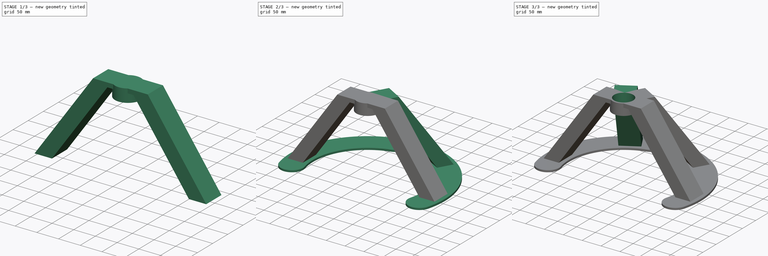
[diagram: build sequence overview — one tinted view per stage of 3, left to right]
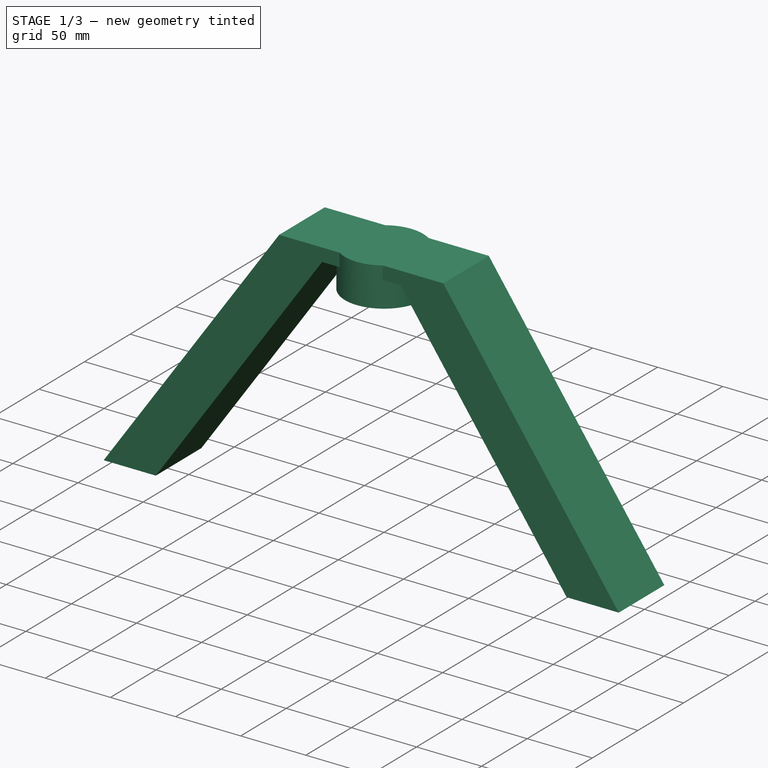
[diagram: stage 1 of 3 — iso view after this stage's code; geometry added in this stage tinted green]
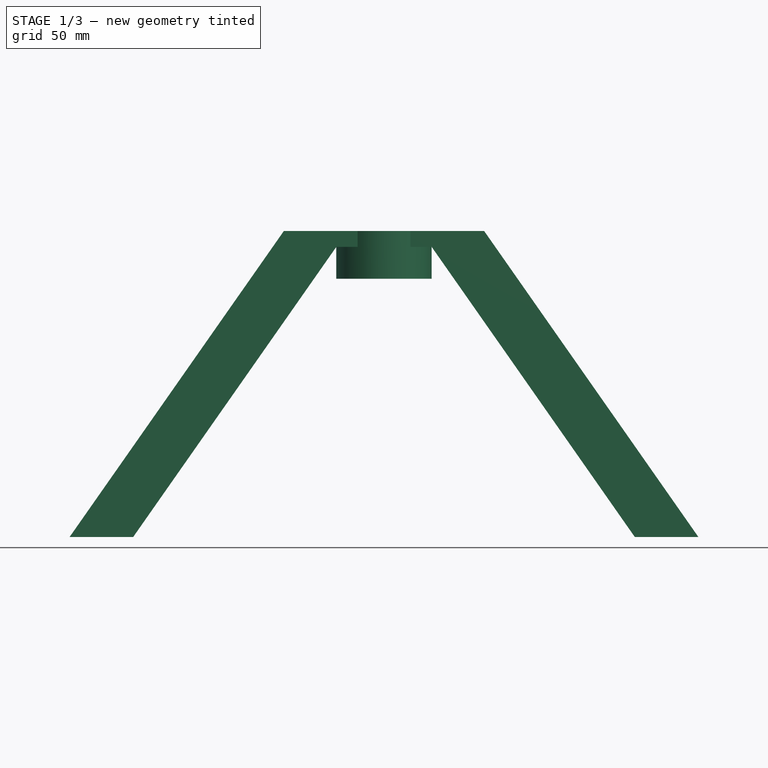
[diagram: stage 1 of 3 — front view after this stage's code; geometry added in this stage tinted green]
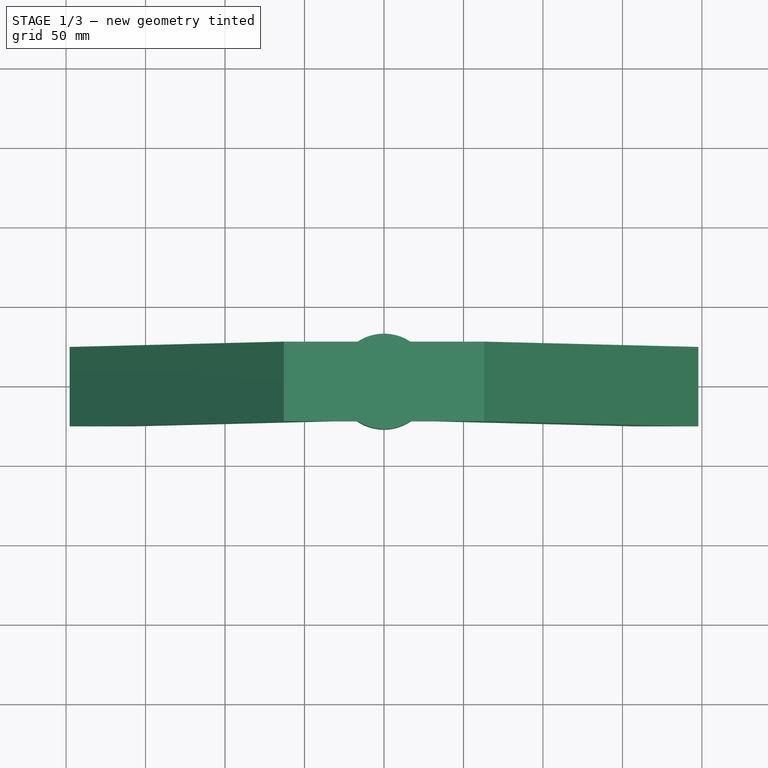
[diagram: stage 1 of 3 — top view after this stage's code; geometry added in this stage tinted green]
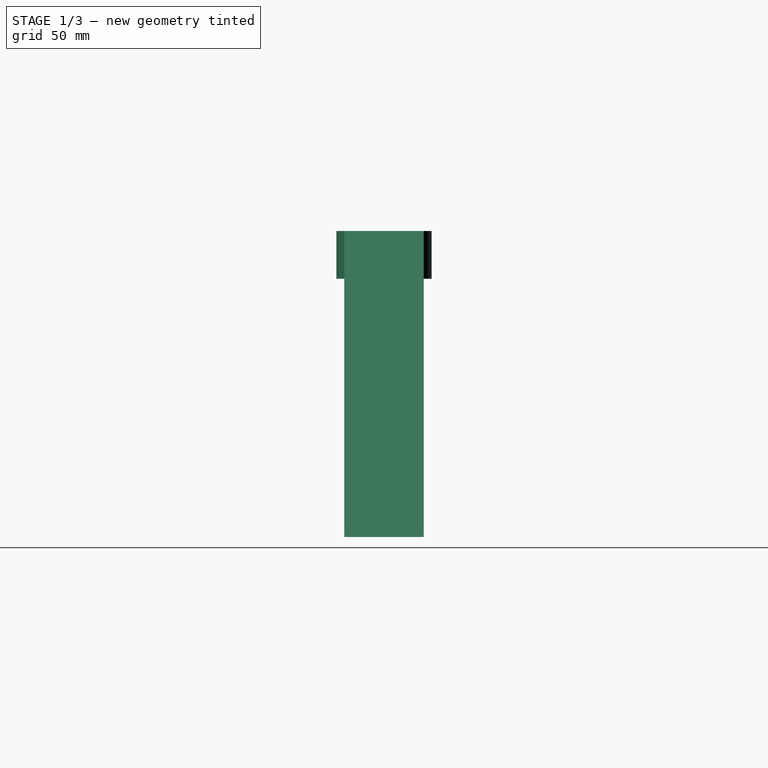
[diagram: stage 1 of 3 — right view after this stage's code; geometry added in this stage tinted green]
FCSTD DOCUMENT  (FreeCAD 1.0R38641 +678 (Git))
Label: pendulum_Pedestral
License: All rights reserved
LicenseURL: https://en.wikipedia.org/wiki/All_rights_reserved
objects: Sketcher::SketchObject×8, PartDesign::Pad×6, PartDesign::Pocket×1, PartDesign::CoordinateSystem×1, PartDesign::Body×1
note: 39 computed .brp shape members not serialized (recipe doc carries the construction recipe); baked Part::Feature solids carry a one-line shape summary decoded from their .brp

FEATURE [Sketcher::SketchObject] Sketch
  ArcFitTolerance = 1e-06
  AttachmentSupport = -> [XY_Plane]
  FullyConstrained = true
  MakeInternals = false
  MapMode = 5
  sketch-geometry (1):
    g0: Circle CenterX=0 CenterY=0 CenterZ=0 NormalX=0 NormalY=0 NormalZ=1 AngleXU=0 Radius=30
  constraints (2):
    c: Diameter(g0) = 60
    c: Coincident(g-1,g0)
FEATURE [PartDesign::Pad] Pad
  Direction = (0,0,1)
  Length = 30
  Length2 = 10
  Profile = -> Sketch
  ReferenceAxis = -> Sketch [N_Axis]
  Refine = true
  Suppressed = false
  Type = 0
FEATURE [Sketcher::SketchObject] Sketch001
  ArcFitTolerance = 1e-06
  AttachmentSupport = -> [XZ_Plane]
  ExternalGeometry = -> [Pad]
  FullyConstrained = true
  MakeInternals = false
  MapMode = 5
  Placement = pos=(0,0,0) rot=(1,0,0;1.5708rad)
  sketch-geometry (8):
    g0: LineSegment StartX=62.9979 StartY=30 StartZ=0 EndX=197.788 EndY=-162.501 EndZ=0
    g1: LineSegment StartX=197.788 StartY=-162.501 StartZ=0 EndX=157.788 EndY=-162.501 EndZ=0
    g2: LineSegment StartX=157.788 StartY=-162.501 StartZ=0 EndX=30 EndY=20 EndZ=0
    g3: LineSegment StartX=-157.788 StartY=-162.501 StartZ=0 EndX=-197.788 EndY=-162.501 EndZ=0
    g4: LineSegment StartX=-197.788 StartY=-162.501 StartZ=0 EndX=-62.9979 EndY=30 EndZ=0
    g5: LineSegment StartX=-62.9979 StartY=30 StartZ=0 EndX=62.9979 EndY=30 EndZ=0
    g6: LineSegment StartX=30 StartY=20 StartZ=0 EndX=-30 EndY=20 EndZ=0
    g7: LineSegment StartX=-30 StartY=20 StartZ=0 EndX=-157.788 EndY=-162.501 EndZ=0
  constraints (21):
    c: Coincident(g0,g1)
    c: Horizontal(g1)
    c: Coincident(g1,g2)
    c: Parallel(g0,g2)
    c: DistanceX(g1,g1) = 40
    c: Distance(g0) = 235
    c: Angle(g-1,g2) = 2.18166
    c: PointOnObject(g2,g-3)
    c: Horizontal(g3)
    c: Coincident(g3,g4)
    c: Coincident(g4,g5)
    c: Coincident(g6,g7)
    c: Coincident(g7,g3)
    c: Symmetric(g3,g1,g-2)
    c: DistanceX(g3,g3) = 40
    c: Symmetric(g4,g0,g-2)
    c: Symmetric(g6,g2,g-2)
    c: Coincident(g5,g0)
    c: Coincident(g6,g2)
    c: DistanceY(g6,g4) = 10
    c: PointOnObject(g-3,g5)
FEATURE [PartDesign::Pad] Pad001
  BaseFeature = -> Pad
  Direction = (0,-1,2e-16)
  Length = 50
  Length2 = 10
  Midplane = true
  Profile = -> Sketch001
  ReferenceAxis = -> Sketch001 [N_Axis]
  Refine = true
  Suppressed = false
  Type = 0
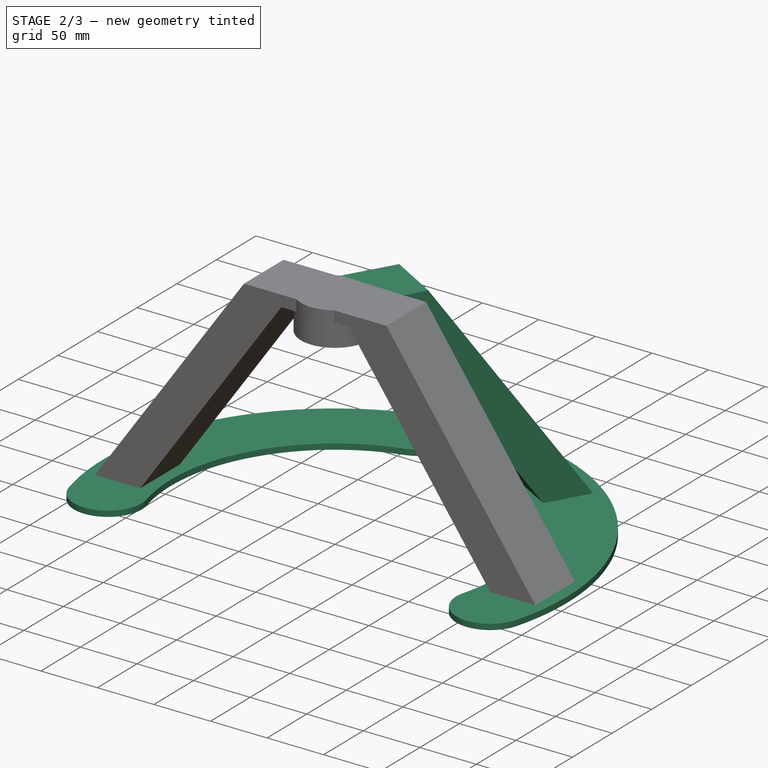
[diagram: stage 2 of 3 — iso view after this stage's code; geometry added in this stage tinted green]
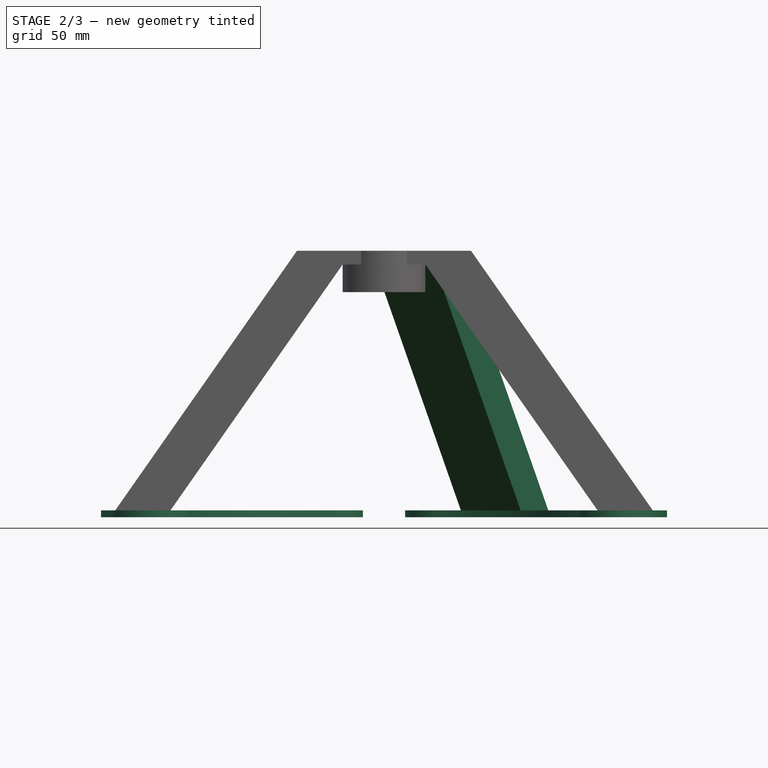
[diagram: stage 2 of 3 — front view after this stage's code; geometry added in this stage tinted green]
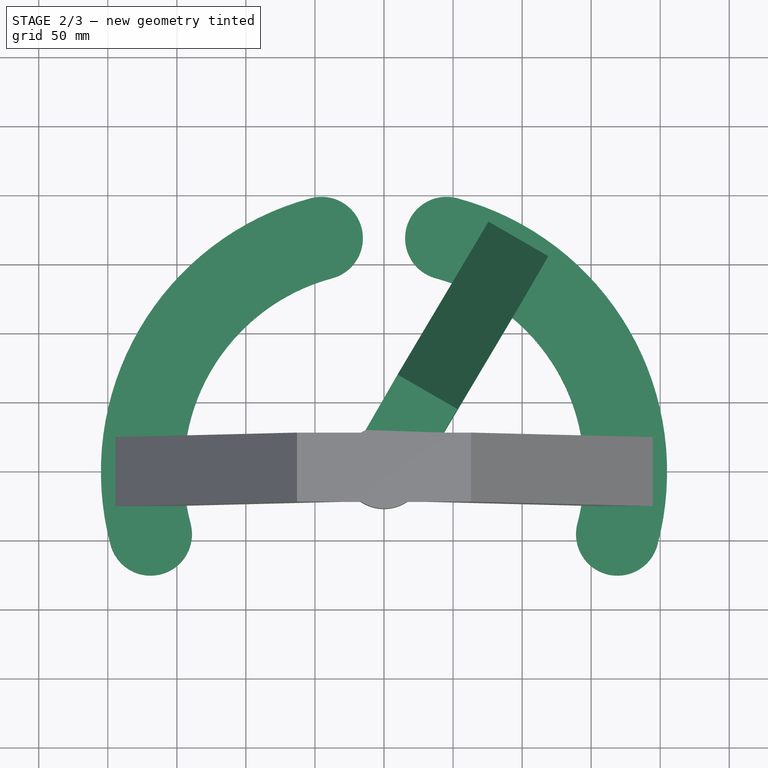
[diagram: stage 2 of 3 — top view after this stage's code; geometry added in this stage tinted green]
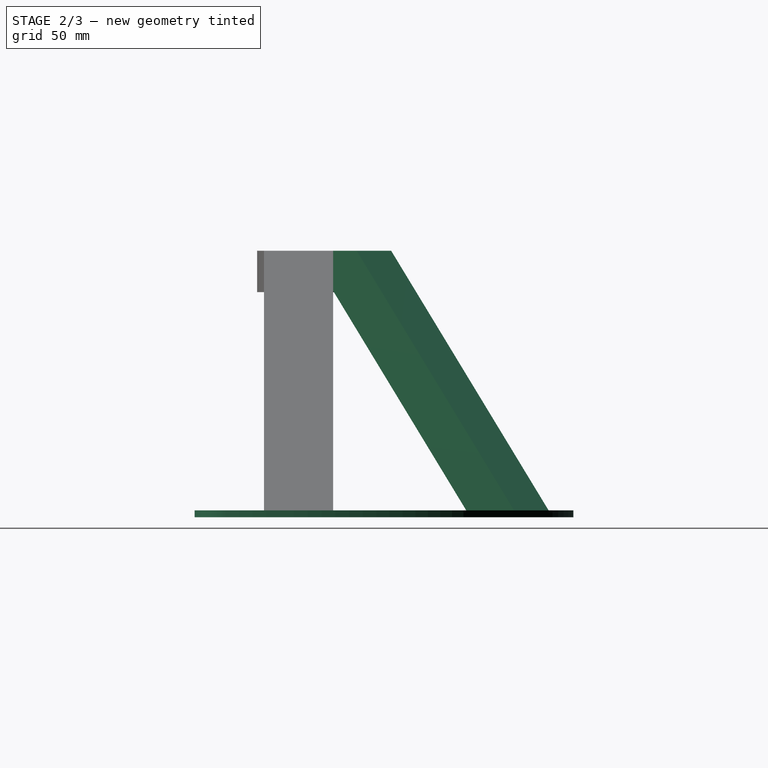
[diagram: stage 2 of 3 — right view after this stage's code; geometry added in this stage tinted green]
FEATURE [Sketcher::SketchObject] Sketch002
  ArcFitTolerance = 1e-06
  AttachmentSupport = -> [Pad001]
  FullyConstrained = true
  MakeInternals = false
  MapMode = 5
  Placement = pos=(0,0,30) rot=(0,0,1;0rad)
  sketch-geometry (1):
    g0: Circle CenterX=0 CenterY=0 CenterZ=0 NormalX=0 NormalY=0 NormalZ=1 AngleXU=0 Radius=25.3
  constraints (2):
    c: Coincident(g0,g-1)
    c: Diameter(g0) = 50.6
FEATURE [Sketcher::SketchObject] Sketch003
  ArcFitTolerance = 1e-06
  AttachmentOffset = pos=(0,0,-163) rot=(0,0,1;0rad)
  AttachmentSupport = -> [XY_Plane]
  FullyConstrained = true
  MakeInternals = false
  MapMode = 5
  Placement = pos=(0,0,-163) rot=(0,0,1;0rad)
  sketch-geometry (6):
    g0: ArcOfCircle CenterX=0 CenterY=0 CenterZ=0 NormalX=0 NormalY=0 NormalZ=1 AngleXU=0 Radius=145 StartAngle=1.8326 EndAngle=3.40339
    g1: ArcOfCircle CenterX=0 CenterY=0 CenterZ=0 NormalX=0 NormalY=0 NormalZ=1 AngleXU=0 Radius=205 StartAngle=1.8326 EndAngle=3.40339
    g2: LineSegment [constr] StartX=0 StartY=0 StartZ=0 EndX=-212.504 EndY=-56.9402 EndZ=0
    g3: LineSegment [constr] StartX=0 StartY=0 StartZ=0 EndX=-56.9402 EndY=212.504 EndZ=0
    g4: ArcOfCircle CenterX=-169.037 CenterY=-45.2933 CenterZ=0 NormalX=0 NormalY=0 NormalZ=1 AngleXU=0 Radius=30 StartAngle=3.40339 EndAngle=6.54498
    g5: ArcOfCircle CenterX=-45.2933 CenterY=169.037 CenterZ=0 NormalX=0 NormalY=0 NormalZ=1 AngleXU=0 Radius=30 StartAngle=4.97419 EndAngle=8.11578
  constraints (20):
    c: Coincident(g0,g-1)
    c: Coincident(g2,g0)
    c: Coincident(g3,g1)
    c: Coincident(g1,g0)
    c: PointOnObject(g0,g2)
    c: PointOnObject(g1,g2)
    c: PointOnObject(g1,g3)
    c: Angle(g2,g-1) = 2.87979
    c: Angle(g-2,g3) = 0.261799
    c: Radius(g0) = 145
    c: Diameter(g5) = 60
    c: Coincident(g5,g1)
    c: Coincident(g5,g0)
    c: Diameter(g4) = 60
    c: Coincident(g4,g1)
    c: Coincident(g4,g0)
    c: PointOnObject(g4,g2)
    c: PointOnObject(g0,g3)
    c: Equal(g3,g2)
    c: Distance(g3) = 220
FEATURE [PartDesign::Pad] Pad002
  BaseFeature = -> Pad001
  Direction = (0,0,1)
  Length = 5
  Length2 = 10
  Profile = -> Sketch003
  ReferenceAxis = -> Sketch003 [N_Axis]
  Refine = true
  Suppressed = false
  Type = 0
FEATURE [Sketcher::SketchObject] Sketch004
  ArcFitTolerance = 1e-06
  AttachmentSupport = -> [Pad002]
  ExternalGeometry = -> [Pad002]
  FullyConstrained = true
  MakeInternals = false
  MapMode = 5
  Placement = pos=(0,0,-158) rot=(0,0,1;0rad)
  sketch-geometry (4):
    g0: ArcOfCircle CenterX=0 CenterY=0 CenterZ=0 NormalX=0 NormalY=0 NormalZ=1 AngleXU=0 Radius=145 StartAngle=6.02139 EndAngle=7.59218
    g1: ArcOfCircle CenterX=0 CenterY=0 CenterZ=0 NormalX=0 NormalY=0 NormalZ=1 AngleXU=0 Radius=205 StartAngle=6.02139 EndAngle=7.59218
    g2: ArcOfCircle CenterX=45.2933 CenterY=169.037 CenterZ=0 NormalX=0 NormalY=0 NormalZ=1 AngleXU=0 Radius=30 StartAngle=1.309 EndAngle=4.45059
    g3: ArcOfCircle CenterX=169.037 CenterY=-45.2933 CenterZ=0 NormalX=0 NormalY=0 NormalZ=1 AngleXU=0 Radius=30 StartAngle=2.87979 EndAngle=6.02139
  constraints (11):
    c: Coincident(g0,g-1)
    c: Coincident(g1,g0)
    c: Symmetric(g-3,g0,g-2)
    c: Symmetric(g1,g-3,g-2)
    c: Coincident(g2,g1)
    c: Coincident(g2,g0)
    c: Coincident(g3,g1)
    c: Coincident(g3,g0)
    c: Radius(g2) = 30
    c: Radius(g3) = 30
    c: Symmetric(g-4,g3,g-2)
FEATURE [PartDesign::Pad] Pad003
  BaseFeature = -> Pad002
  Direction = (0,0,1)
  Length = 5
  Length2 = 10
  Profile = -> Sketch004
  ReferenceAxis = -> Sketch004 [N_Axis]
  Refine = true
  Reversed = true
  Suppressed = false
  Type = 0
FEATURE [Sketcher::SketchObject] Sketch005
  ArcFitTolerance = 1e-06
  AttachmentSupport = -> [Pad003]
  FullyConstrained = true
  MakeInternals = false
  MapMode = 5
  Placement = pos=(0,0,-158) rot=(0,0,1;0rad)
  sketch-geometry (5):
    g0: LineSegment StartX=-120.651 StartY=158.973 StartZ=0 EndX=-77.3494 EndY=183.973 EndZ=0
    g1: LineSegment StartX=-77.3494 StartY=183.973 StartZ=0 EndX=-57.3494 EndY=149.332 EndZ=0
    g2: LineSegment StartX=-57.3494 StartY=149.332 StartZ=0 EndX=-100.651 EndY=124.332 EndZ=0
    g3: LineSegment StartX=-100.651 StartY=124.332 StartZ=0 EndX=-120.651 EndY=158.973 EndZ=0
    g4: LineSegment [constr] StartX=0 StartY=0 StartZ=0 EndX=-115 EndY=199.186 EndZ=0
  constraints (13):
    c: Coincident(g0,g1)
    c: Coincident(g1,g2)
    c: Coincident(g2,g3)
    c: Coincident(g3,g0)
    c: Coincident(g4,g-1)
    c: Angle(g-1,g4) = 2.0944
    c: Symmetric(g0,g0,g4)
    c: Distance(g0) = 50
    c: Parallel(g1,g3)
    c: Distance(g3) = 40
    c: Distance(g4,g2) = 158
    c: Symmetric(g1,g2,g4)
    c: Distance(g4) = 230
FEATURE [Sketcher::SketchObject] Sketch006
  ArcFitTolerance = 1e-06
  AttachmentOffset = pos=(0,0,0) rot=(0,1,0;1.0472rad)
  AttachmentSupport = -> [XZ_Plane]
  FullyConstrained = true
  MakeInternals = false
  MapMode = 5
  Placement = pos=(0,0,0) rot=(0.774597,0.447214,0.447214;1.82348rad)
  sketch-geometry (6):
    g0: LineSegment StartX=0 StartY=30 StartZ=0 EndX=62.9979 EndY=30 EndZ=0
    g1: LineSegment StartX=62.9979 StartY=30 StartZ=0 EndX=197.788 EndY=-162.501 EndZ=0
    g2: LineSegment StartX=197.788 StartY=-162.501 StartZ=0 EndX=157.788 EndY=-162.501 EndZ=0
    g3: LineSegment StartX=157.788 StartY=-162.501 StartZ=0 EndX=30 EndY=20 EndZ=0
    g4: LineSegment StartX=30 StartY=20 StartZ=0 EndX=0 EndY=20 EndZ=0
    g5: LineSegment StartX=0 StartY=20 StartZ=0 EndX=0 EndY=30 EndZ=0
  constraints (18):
    c: PointOnObject(g0,g-2)
    c: Horizontal(g0)
    c: Coincident(g0,g1)
    c: Coincident(g1,g2)
    c: Horizontal(g2)
    c: Coincident(g2,g3)
    c: Coincident(g3,g4)
    c: Coincident(g4,g5)
    c: Coincident(g5,g0)
    c: Vertical(g5)
    c: Horizontal(g4)
    c: DistanceY(g5,g5) = 10
    c: DistanceX(g2,g2) = 40
    c: Angle(g-1,g3) = 2.18166
    c: Distance(g1) = 235
    c: Parallel(g3,g1)
    c: DistanceY(g-1,g4) = 20
    c: DistanceX(g4,g4) = 30
FEATURE [PartDesign::Pad] Pad004
  BaseFeature = -> Pad003
  Direction = (0.866025,-0.5,1e-16)
  Length = 50
  Length2 = 10
  Midplane = true
  Profile = -> Sketch006
  ReferenceAxis = -> Sketch006 [N_Axis]
  Refine = true
  Suppressed = false
  Type = 0
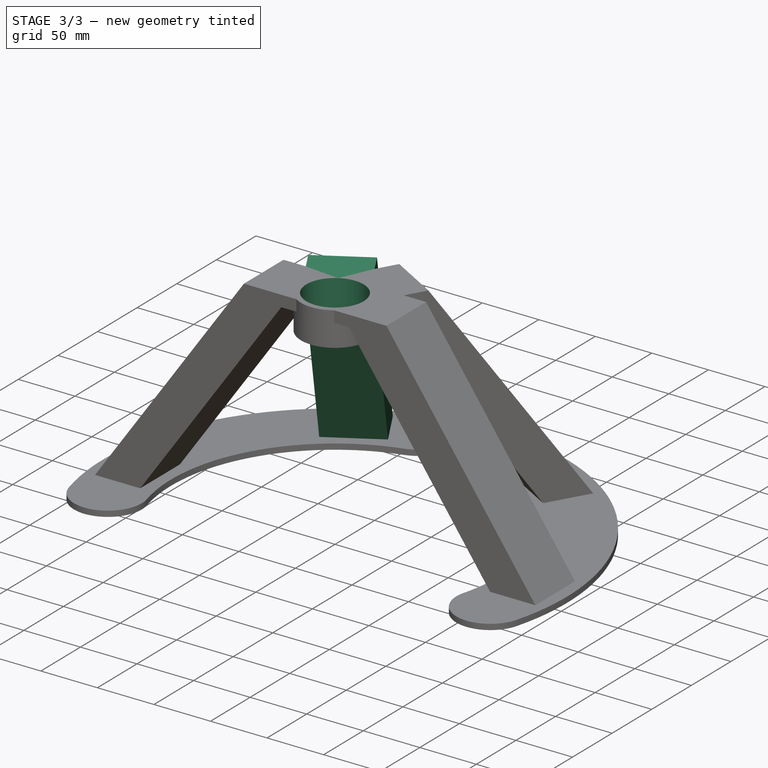
[diagram: stage 3 of 3 — iso view after this stage's code; geometry added in this stage tinted green]
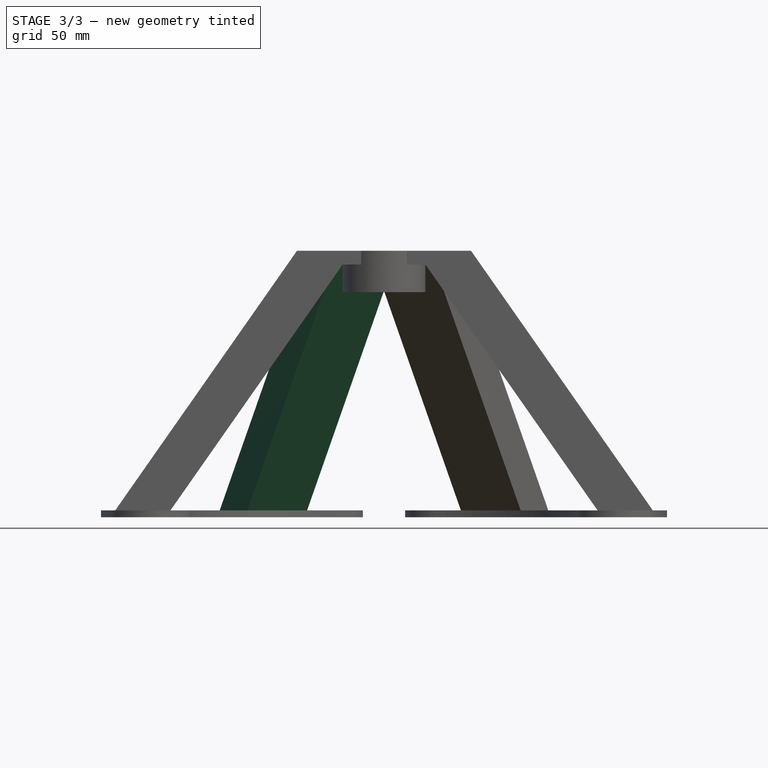
[diagram: stage 3 of 3 — front view after this stage's code; geometry added in this stage tinted green]
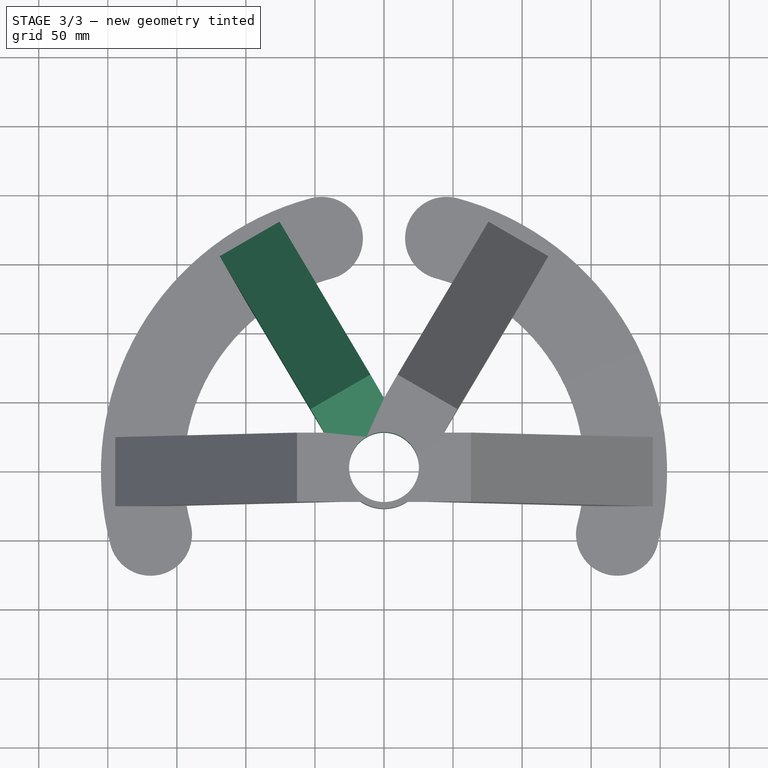
[diagram: stage 3 of 3 — top view after this stage's code; geometry added in this stage tinted green]
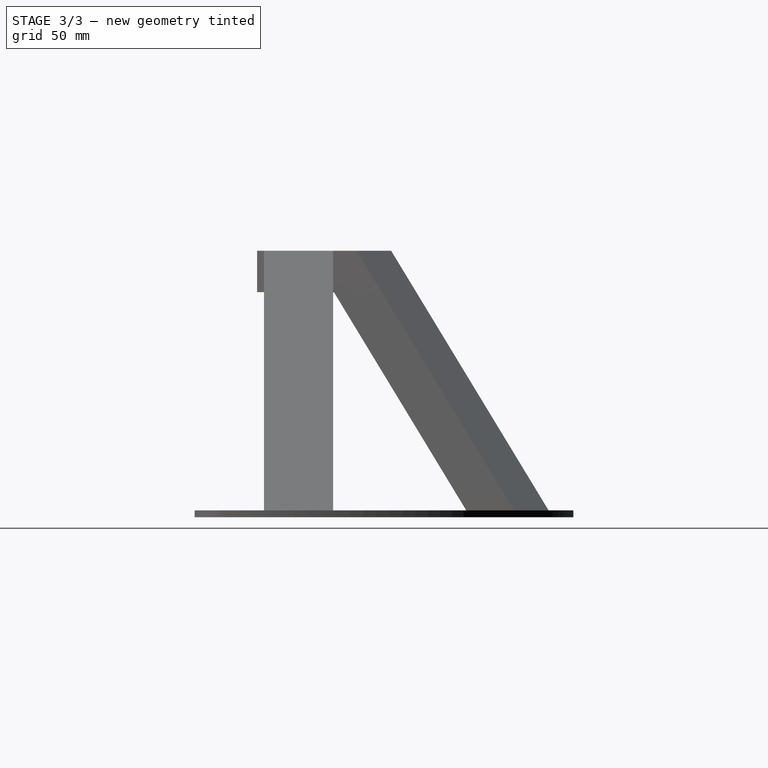
[diagram: stage 3 of 3 — right view after this stage's code; geometry added in this stage tinted green]
FEATURE [Sketcher::SketchObject] Sketch007
  ArcFitTolerance = 1e-06
  AttachmentOffset = pos=(0,0,0) rot=(0,1,0;2.0944rad)
  AttachmentSupport = -> [XZ_Plane]
  FullyConstrained = true
  MakeInternals = false
  MapMode = 5
  Placement = pos=(0,0,0) rot=(0.377964,0.654654,0.654654;2.41886rad)
  sketch-geometry (6):
    g0: LineSegment StartX=0 StartY=30 StartZ=0 EndX=62.9979 EndY=30 EndZ=0
    g1: LineSegment StartX=62.9979 StartY=30 StartZ=0 EndX=197.788 EndY=-162.501 EndZ=0
    g2: LineSegment StartX=197.788 StartY=-162.501 StartZ=0 EndX=157.788 EndY=-162.501 EndZ=0
    g3: LineSegment StartX=157.788 StartY=-162.501 StartZ=0 EndX=30 EndY=20 EndZ=0
    g4: LineSegment StartX=30 StartY=20 StartZ=0 EndX=0 EndY=20 EndZ=0
    g5: LineSegment StartX=0 StartY=20 StartZ=0 EndX=0 EndY=30 EndZ=0
  constraints (18):
    c: PointOnObject(g0,g-2)
    c: Horizontal(g0)
    c: Coincident(g0,g1)
    c: Coincident(g1,g2)
    c: Horizontal(g2)
    c: Coincident(g2,g3)
    c: Coincident(g3,g4)
    c: Coincident(g4,g5)
    c: Coincident(g5,g0)
    c: Vertical(g5)
    c: Horizontal(g4)
    c: DistanceY(g5,g5) = 10
    c: DistanceX(g2,g2) = 40
    c: Angle(g-1,g3) = 2.18166
    c: Distance(g1) = 235
    c: Parallel(g3,g1)
    c: DistanceY(g-1,g4) = 20
    c: DistanceX(g4,g4) = 30
FEATURE [PartDesign::Pad] Pad005
  BaseFeature = -> Pad004
  Direction = (0.866025,0.5,-1e-16)
  Length = 50
  Length2 = 10
  Midplane = true
  Profile = -> Sketch007
  ReferenceAxis = -> Sketch007 [N_Axis]
  Refine = true
  Suppressed = false
  Type = 0
FEATURE [PartDesign::Pocket] Pocket
  BaseFeature = -> Pad005
  Direction = (0,0,-1)
  Length = 5
  Length2 = 5
  Profile = -> Sketch002
  ReferenceAxis = -> Sketch002 [N_Axis]
  Refine = true
  Suppressed = false
  Type = 1
FEATURE [PartDesign::CoordinateSystem] Pedestral_Top
  AttacherType = Attacher::AttachEngine3D
  AttachmentSupport = -> [Pocket]
  MapMode = 45
  Placement = pos=(1.208e-13,1.4e-15,30) rot=(0,0,1;0rad)
FEATURE [PartDesign::Body] Body  label="Body_Pedestral"
  AllowCompound = false
  Group = -> [Sketch,Pad,Sketch001,Pad001,Sketch002,Sketch003,Pad002,Sketch004,Pad003,Sketch005,Sketch006,Pad004,Sketch007,Pad005,Pocket,Pedestral_Top]
  Origin = -> Origin
  Tip = -> Pocket
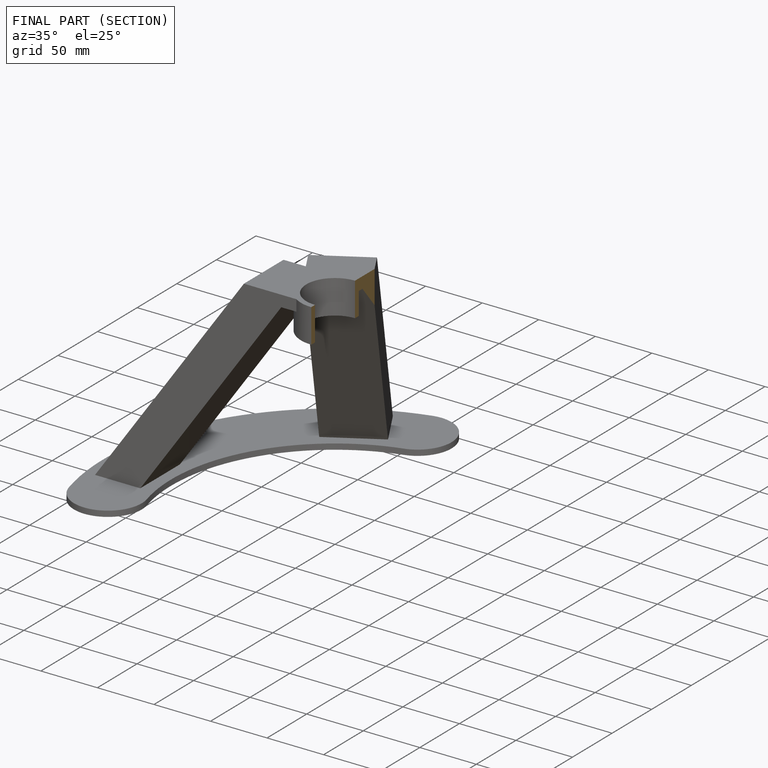
[diagram: finished part — half-section view (interior)]
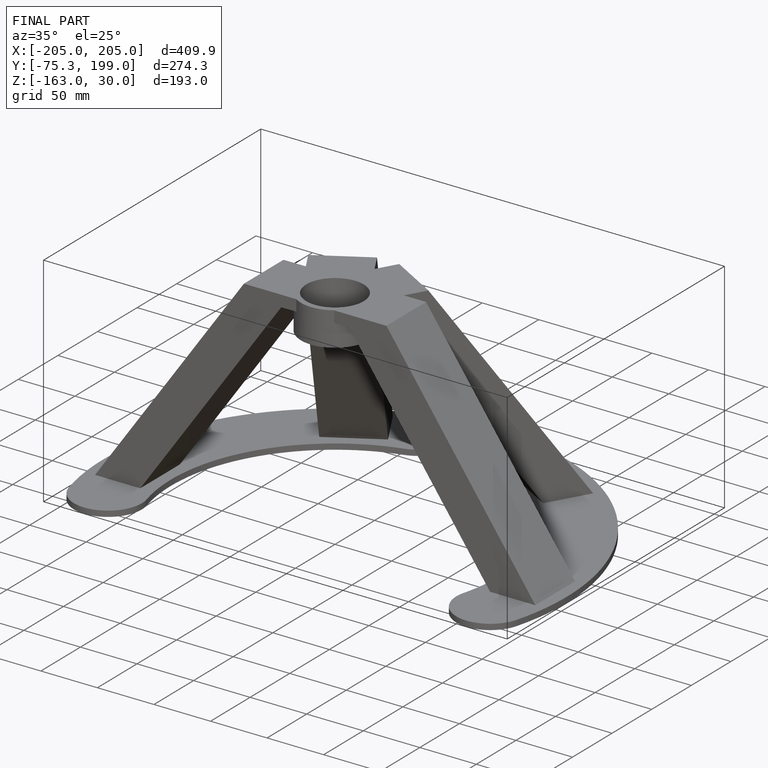
[diagram: finished part — iso view with bounding-box wireframe]
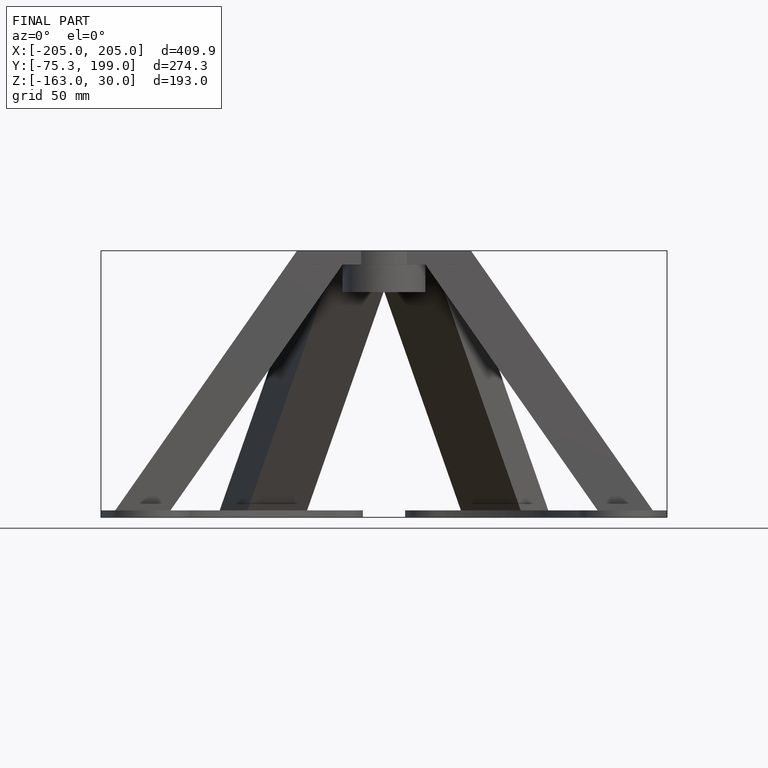
[diagram: finished part — front view with bounding-box wireframe]
